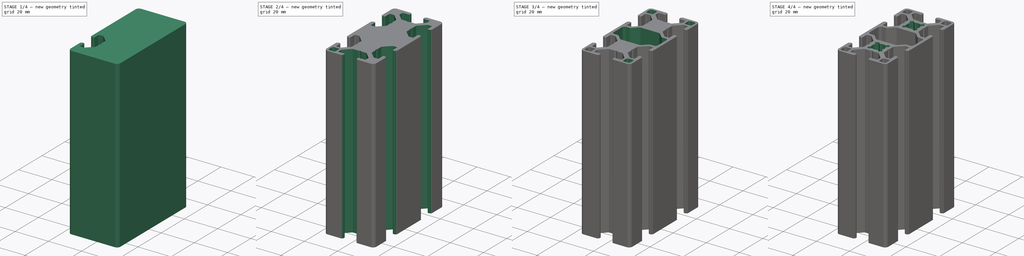
[diagram: build sequence overview — one tinted view per stage of 4, left to right]
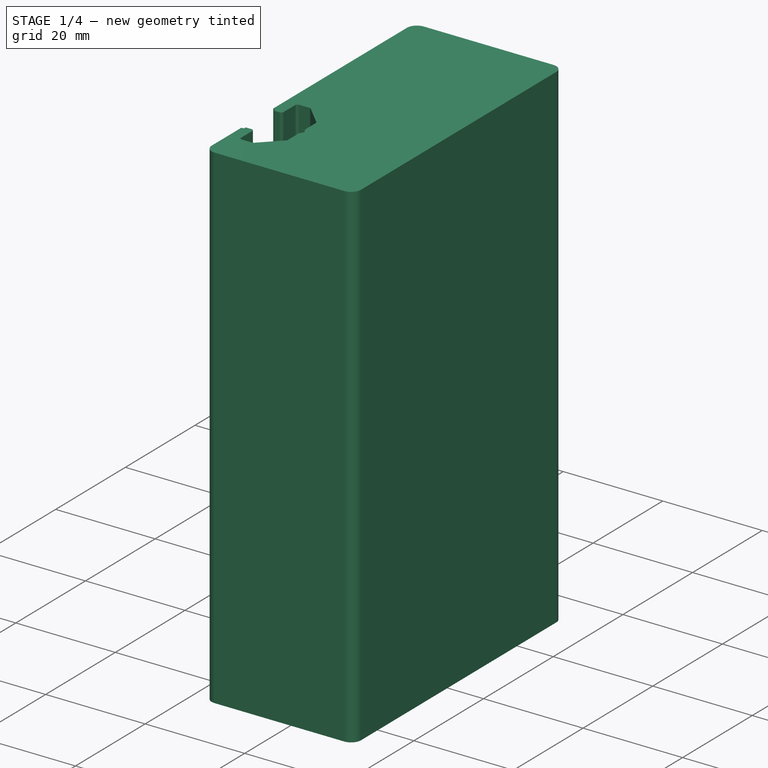
[diagram: stage 1 of 4 — iso view after this stage's code; geometry added in this stage tinted green]
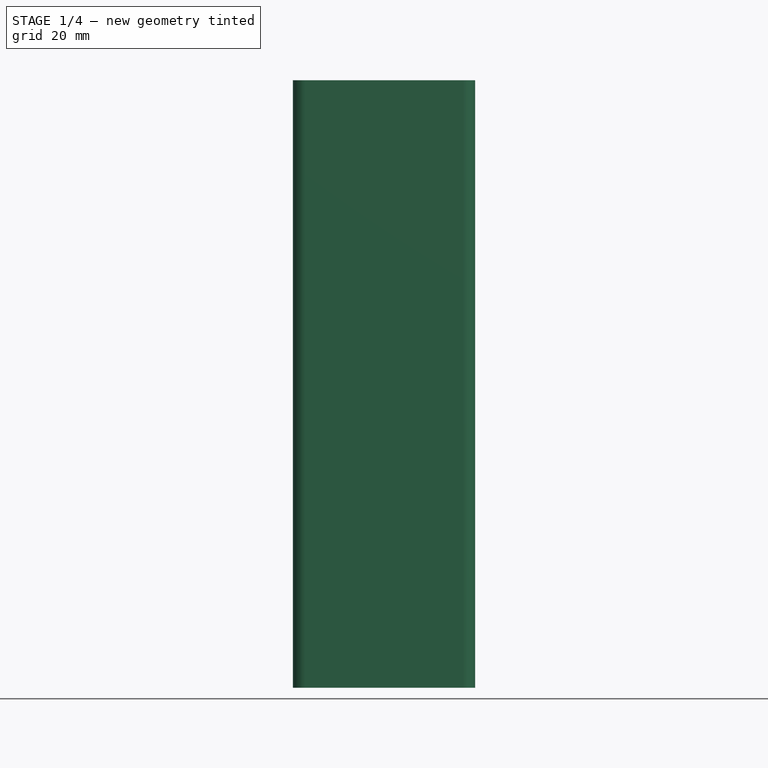
[diagram: stage 1 of 4 — front view after this stage's code; geometry added in this stage tinted green]
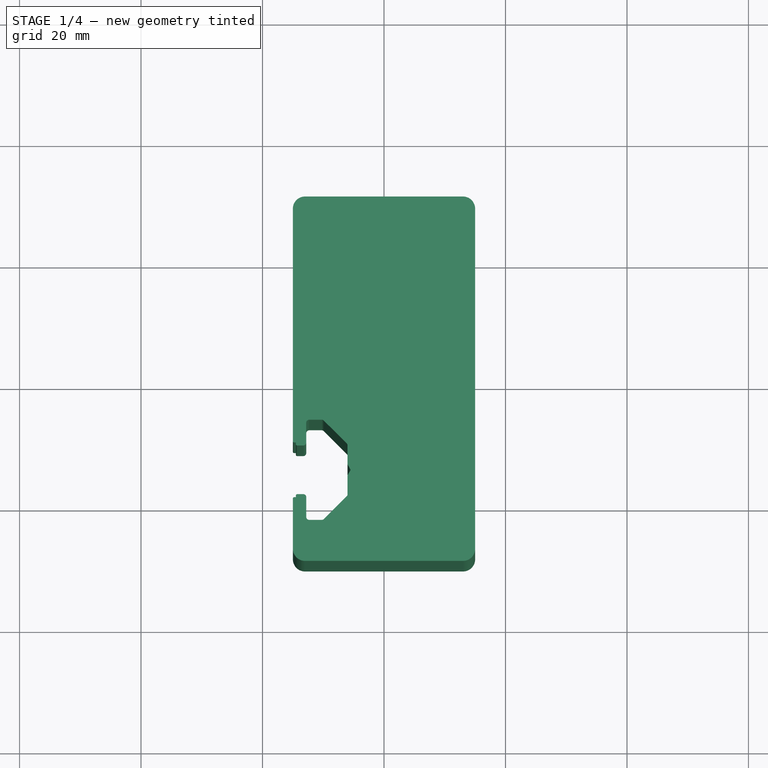
[diagram: stage 1 of 4 — top view after this stage's code; geometry added in this stage tinted green]
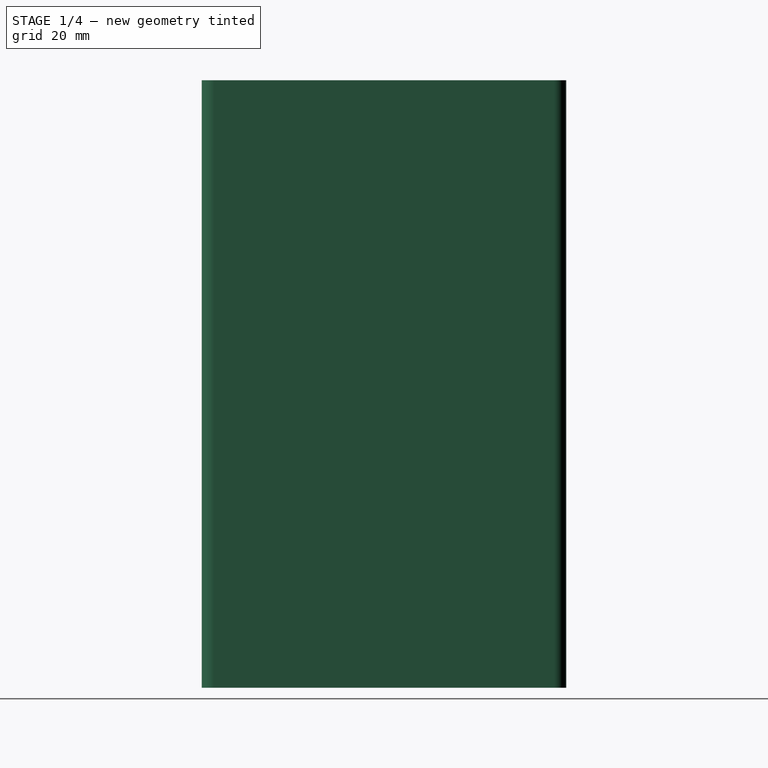
[diagram: stage 1 of 4 — right view after this stage's code; geometry added in this stage tinted green]
FCSTD DOCUMENT  (FreeCAD 0.18R16131 (Git))
Label: Profile-30x60-B-Type_Slot8
License: All rights reserved
LicenseURL: http://en.wikipedia.org/wiki/All_rights_reserved
objects: Sketcher::SketchObject×5, PartDesign::Pocket×4, PartDesign::Mirrored×4, PartDesign::PolarPattern×2, PartDesign::MultiTransform×2, PartDesign::Pad×1, PartDesign::Line×1, PartDesign::Body×1
note: 25 computed .brp shape members not serialized (recipe doc carries the construction recipe); baked Part::Feature solids carry a one-line shape summary decoded from their .brp

FEATURE [Sketcher::SketchObject] Sketch  label="Material_Sketch"
  MapMode = 5
  Support = -> [XY_Plane]
  expr: Constraints[15] = Constraints.Base_Width * 2
  sketch-geometry (8):
    g0: LineSegment StartX=-13 StartY=30 StartZ=0 EndX=13 EndY=30 EndZ=0
    g1: LineSegment StartX=15 StartY=28 StartZ=0 EndX=15 EndY=-28 EndZ=0
    g2: LineSegment StartX=13 StartY=-30 StartZ=0 EndX=-13 EndY=-30 EndZ=0
    g3: LineSegment StartX=-15 StartY=-28 StartZ=0 EndX=-15 EndY=28 EndZ=0
    g4: ArcOfCircle CenterX=-13 CenterY=28 CenterZ=0 NormalX=0 NormalY=0 NormalZ=1 AngleXU=0 Radius=2 StartAngle=1.5708 EndAngle=3.14159
    g5: ArcOfCircle CenterX=13 CenterY=28 CenterZ=0 NormalX=0 NormalY=0 NormalZ=1 AngleXU=0 Radius=2 StartAngle=-9e-16 EndAngle=1.5708
    g6: ArcOfCircle CenterX=-13 CenterY=-28 CenterZ=0 NormalX=0 NormalY=0 NormalZ=1 AngleXU=0 Radius=2 StartAngle=3.14159 EndAngle=4.71239
    g7: ArcOfCircle CenterX=13 CenterY=-28 CenterZ=0 NormalX=0 NormalY=0 NormalZ=1 AngleXU=0 Radius=2 StartAngle=4.71239 EndAngle=6.28319
  constraints (18):
    c: Horizontal(g0)
    c: Vertical(g1)
    c: Vertical(g3)
    c: Tangent(g3,g4) = 1.5708
    c: Tangent(g0,g4) = 1.5708
    c: Tangent(g0,g5) = 1.5708
    c: Tangent(g1,g5) = 1.5708
    c: Radius(g5) = 2
    c: Equal(g5,g4)
    c: Tangent(g3,g6) = 1.5708
    c: Tangent(g2,g6) = 1.5708
    c: Tangent(g2,g7) = 1.5708
    c: Tangent(g1,g7) = 1.5708
    c: Equal(g4,g6)
    c: DistanceX(g3,g1) = 30  'Base_Width'
    c: DistanceY(g2,g0) = 60
    c: Symmetric(g3,g1,g-2)
    c: Symmetric(g2,g0,g-1)
FEATURE [PartDesign::Pad] Pad  label="Solid_Material"
  Length = 100
  Length2 = 100
  Profile = -> Sketch
  Type = 0
FEATURE [Sketcher::SketchObject] Sketch001
  MapMode = 5
  Support = -> [XY_Plane]
  expr: Constraints[6] = Sketch.Constraints.Base_Width / 2
  expr: Constraints[3] = Sketch.Constraints.Base_Width
  sketch-geometry (34):
    g0: LineSegment [constr] StartX=-15 StartY=0 StartZ=0 EndX=-15 EndY=-30 EndZ=0
    g1: LineSegment [constr] StartX=-15 StartY=-15 StartZ=0 EndX=15 EndY=-15 EndZ=0
    g2: LineSegment StartX=-14.5 StartY=-10.5 StartZ=0 EndX=-14.5 EndY=-10.8 EndZ=0
    g3: LineSegment StartX=-14.3 StartY=-11 StartZ=0 EndX=-13.3 EndY=-11 EndZ=0
    g4: LineSegment StartX=-12.8 StartY=-10.5 StartZ=0 EndX=-12.8 EndY=-7.25 EndZ=0
    g5: LineSegment StartX=-12.3 StartY=-6.75 StartZ=0 EndX=-10.26 EndY=-6.75 EndZ=0
    g6: LineSegment StartX=-9.90668 StartY=-6.89621 StartZ=0 EndX=-6.14668 EndY=-10.6512 EndZ=0
    g7: LineSegment StartX=-6 StartY=-11.005 StartZ=0 EndX=-6 EndY=-14.045 EndZ=0
    g8: LineSegment StartX=-5.97414 StartY=-14.1434 StartZ=0 EndX=-5.54586 EndY=-14.9016 EndZ=0
    g9: LineSegment StartX=-5.54586 StartY=-15.0984 StartZ=0 EndX=-5.97414 EndY=-15.8566 EndZ=0
    g10: LineSegment StartX=-6 StartY=-15.955 StartZ=0 EndX=-6 EndY=-18.995 EndZ=0
    g11: LineSegment StartX=-6.14668 StartY=-19.3488 StartZ=0 EndX=-9.90668 EndY=-23.1038 EndZ=0
    g12: LineSegment StartX=-10.26 StartY=-23.25 StartZ=0 EndX=-12.3 EndY=-23.25 EndZ=0
    g13: LineSegment StartX=-12.8 StartY=-22.75 StartZ=0 EndX=-12.8 EndY=-19.5 EndZ=0
    g14: LineSegment StartX=-13.3 StartY=-19 StartZ=0 EndX=-14.3 EndY=-19 EndZ=0
    g15: LineSegment StartX=-14.5 StartY=-19.2 StartZ=0 EndX=-14.5 EndY=-19.5 EndZ=0
    g16: ArcOfCircle CenterX=-14.3 CenterY=-10.8 CenterZ=0 NormalX=0 NormalY=0 NormalZ=1 AngleXU=0 Radius=0.2 StartAngle=3.14159 EndAngle=4.71239
    g17: ArcOfCircle CenterX=-13.3 CenterY=-10.5 CenterZ=0 NormalX=0 NormalY=0 NormalZ=1 AngleXU=0 Radius=0.5 StartAngle=4.71239 EndAngle=6.28319
    g18: ArcOfCircle CenterX=-12.3 CenterY=-7.25 CenterZ=0 NormalX=0 NormalY=0 NormalZ=1 AngleXU=0 Radius=0.5 StartAngle=1.5708 EndAngle=3.14159
    g19: ArcOfCircle CenterX=-10.26 CenterY=-7.25 CenterZ=0 NormalX=0 NormalY=0 NormalZ=1 AngleXU=0 Radius=0.5 StartAngle=0.786063 EndAngle=1.5708
    g20: ArcOfCircle CenterX=-6.5 CenterY=-11.005 CenterZ=0 NormalX=0 NormalY=0 NormalZ=1 AngleXU=0 Radius=0.5 StartAngle=1e-16 EndAngle=0.786063
    g21: ArcOfCircle CenterX=-5.8 CenterY=-14.045 CenterZ=0 NormalX=0 NormalY=0 NormalZ=1 AngleXU=0 Radius=0.2 StartAngle=3.14159 EndAngle=3.65573
    g22: ArcOfCircle CenterX=-5.72 CenterY=-15 CenterZ=0 NormalX=0 NormalY=0 NormalZ=1 AngleXU=0 Radius=0.2 StartAngle=5.76904 EndAngle=6.79733
    g23: ArcOfCircle CenterX=-5.8 CenterY=-15.955 CenterZ=0 NormalX=0 NormalY=0 NormalZ=1 AngleXU=0 Radius=0.2 StartAngle=2.62745 EndAngle=3.14159
    g24: ArcOfCircle CenterX=-6.5 CenterY=-18.995 CenterZ=0 NormalX=0 NormalY=0 NormalZ=1 AngleXU=0 Radius=0.5 StartAngle=5.49712 EndAngle=6.28319
    g25: ArcOfCircle CenterX=-10.26 CenterY=-22.75 CenterZ=0 NormalX=0 NormalY=0 NormalZ=1 AngleXU=0 Radius=0.5 StartAngle=4.71239 EndAngle=5.49712
    g26: ArcOfCircle CenterX=-12.3 CenterY=-22.75 CenterZ=0 NormalX=0 NormalY=0 NormalZ=1 AngleXU=0 Radius=0.5 StartAngle=3.14159 EndAngle=4.71239
    g27: ArcOfCircle CenterX=-13.3 CenterY=-19.5 CenterZ=0 NormalX=0 NormalY=0 NormalZ=1 AngleXU=0 Radius=0.5 StartAngle=-1.8e-15 EndAngle=1.5708
    g28: ArcOfCircle CenterX=-14.3 CenterY=-19.2 CenterZ=0 NormalX=0 NormalY=0 NormalZ=1 AngleXU=0 Radius=0.2 StartAngle=1.5708 EndAngle=3.14159
    g29: LineSegment StartX=-14.5 StartY=-10.5 StartZ=0 EndX=-14.8 EndY=-10.5 EndZ=0
    g30: ArcOfCircle CenterX=-14.8 CenterY=-10.3 CenterZ=0 NormalX=0 NormalY=0 NormalZ=1 AngleXU=0 Radius=0.2 StartAngle=3.14157 EndAngle=4.71239
    g31: LineSegment StartX=-14.5 StartY=-19.5 StartZ=0 EndX=-14.8 EndY=-19.5 EndZ=0
    g32: ArcOfCircle CenterX=-14.8 CenterY=-19.7 CenterZ=0 NormalX=0 NormalY=0 NormalZ=1 AngleXU=0 Radius=0.200005 StartAngle=1.5708 EndAngle=3.14159
    g33: LineSegment StartX=-15 StartY=-10.3 StartZ=0 EndX=-15 EndY=-19.7 EndZ=0
  constraints (82):
    c: Vertical(g0)
    c: Horizontal(g1)
    c: Equal(g0,g1)
    c: DistanceY(g0,g0) = 30
    c: Symmetric(g0,g0,g1)
    c: PointOnObject(g0,g-1)
    c: DistanceX(g0,g-1) = 15
    c: Vertical(g2)
    c: Vertical(g4)
    c: Horizontal(g5)
    c: Vertical(g7)
    c: Vertical(g10)
    c: Vertical(g13)
    c: Horizontal(g14)
    c: Vertical(g15)
    c: Horizontal(g3)
    c: Horizontal(g12)
    c: Symmetric(g2,g15,g1)
    c: Tangent(g2,g16) = -1.5708
    c: Tangent(g3,g16) = -1.5708
    c: Tangent(g3,g17) = -1.5708
    c: Tangent(g4,g17) = -1.5708
    c: Tangent(g4,g18) = 1.5708
    c: Tangent(g5,g18) = 1.5708
    c: Tangent(g5,g19) = 1.5708
    c: Tangent(g6,g19) = 1.5708
    c: Tangent(g6,g20) = 1.5708
    c: Tangent(g7,g20) = 1.5708
    c: Tangent(g7,g21) = -1.5708
    c: Tangent(g8,g21) = -1.5708
    c: Tangent(g8,g22) = 1.5708
    c: Tangent(g9,g22) = 1.5708
    c: Tangent(g10,g23) = -1.5708
    c: Tangent(g9,g23) = -1.5708
    c: Tangent(g10,g24) = 1.5708
    c: Tangent(g11,g24) = 1.5708
    c: Tangent(g11,g25) = 1.5708
    c: Tangent(g12,g25) = 1.5708
    c: Tangent(g12,g26) = 1.5708
    c: Tangent(g13,g26) = 1.5708
    c: Tangent(g14,g27) = -1.5708
    c: Tangent(g13,g27) = -1.5708
    c: Tangent(g15,g28) = -1.5708
    c: Tangent(g14,g28) = -1.5708
    c: Equal(g16,g28)
    c: Equal(g17,g27)
    c: Equal(g20,g24)
    c: Radius(g17) = 0.5
    c: Radius(g16) = 0.2
    c: Radius(g18) = 0.5
    c: Radius(g19) = 0.5
    c: Radius(g20) = 0.5
    c: Radius(g21) = 0.2
    c: Radius(g22) = 0.2
    c: PointOnObject(g22,g1)
    c: Coincident(g2,g29)
    c: Tangent(g29,g30) = 1.5708
    c: Coincident(g15,g31)
    c: Horizontal(g31)
    c: Tangent(g31,g32) = -1.5708
    c: Symmetric(g32,g30,g1)
    c: Coincident(g33,g30)
    c: Coincident(g33,g32)
    c: Horizontal(g29)
    c: Radius(g30) = 0.2
    c: Symmetric(g18,g26,g1)
    c: Symmetric(g20,g24,g1)
    c: Symmetric(g21,g23,g1)
    c: Tangent(g30,g0)
    c: Symmetric(g17,g27,g1)
    c: DistanceY(g15,g2) = 9
    c: DistanceY(g14,g3) = 8
    c: DistanceY(g12,g5) = 16.5
    c: DistanceY(g24,g20) = 7.99
    c: DistanceX(g32,g24) = 8.5
    c: DistanceX(g32,g25) = 4.74
    c: DistanceX(g32,g22) = 9.28
    c: Symmetric(g19,g25,g1)
    c: Tangent(g32,g0) = -1.5708
    c: DistanceX(g32,g15) = 0.5
    c: DistanceY(g23,g21) = 1.91
    c: DistanceX(g32,g13) = 2.2
FEATURE [PartDesign::Pocket] Pocket  label="Slot"
  BaseFeature = -> Pad
  Length = 5
  Length2 = 100
  Profile = -> Sketch001
  Reversed = true
  Type = 1
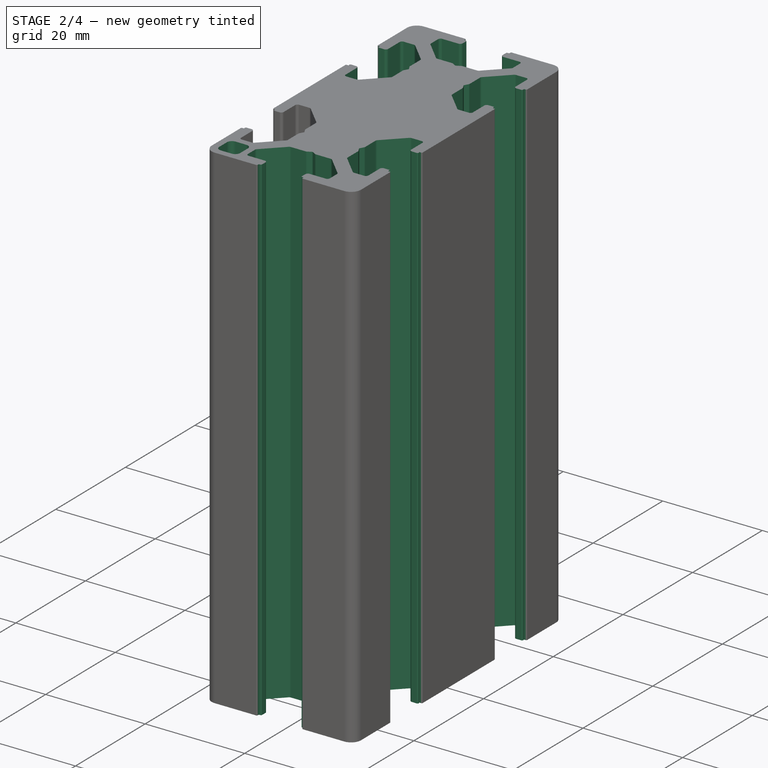
[diagram: stage 2 of 4 — iso view after this stage's code; geometry added in this stage tinted green]
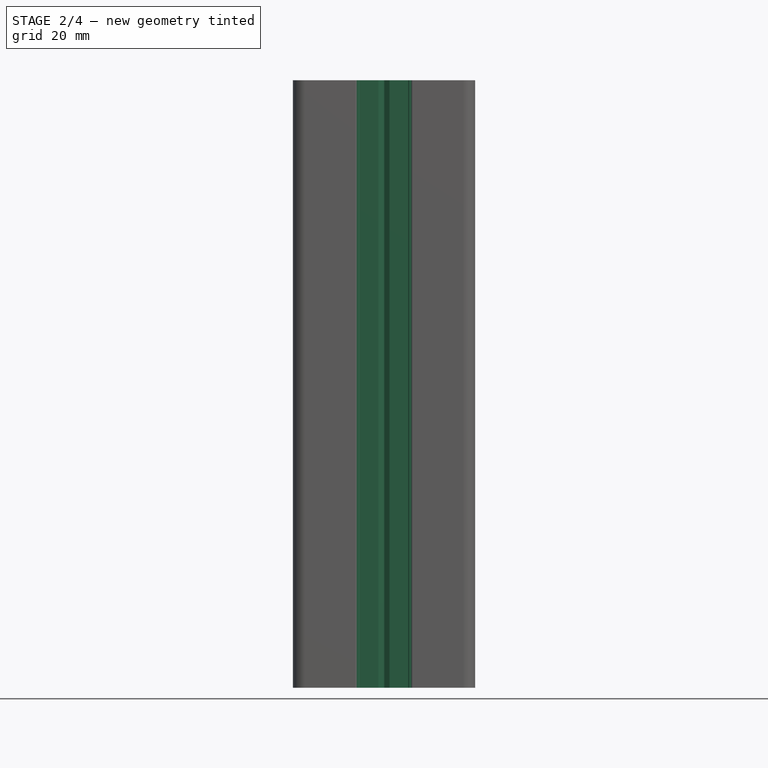
[diagram: stage 2 of 4 — front view after this stage's code; geometry added in this stage tinted green]
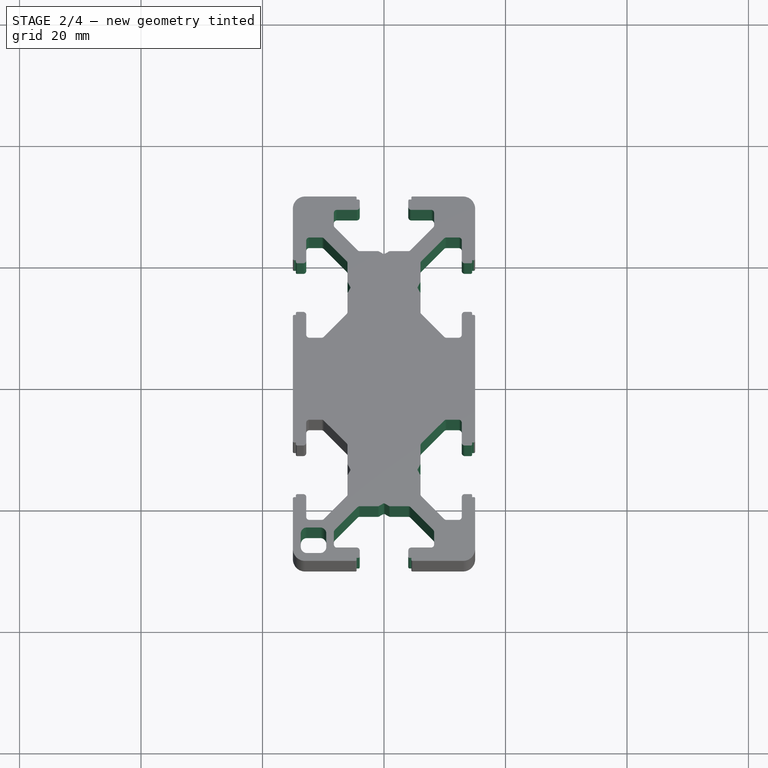
[diagram: stage 2 of 4 — top view after this stage's code; geometry added in this stage tinted green]
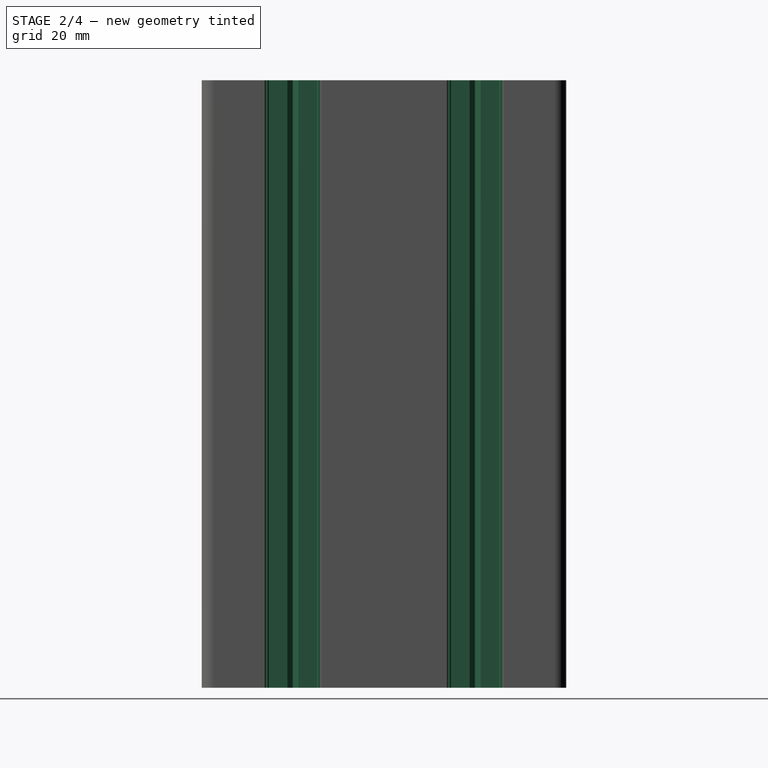
[diagram: stage 2 of 4 — right view after this stage's code; geometry added in this stage tinted green]
FEATURE [PartDesign::Line] DatumLine
  AttacherType = Attacher::AttachEngineLine
  AttachmentOffset = pos=(0,-15,0) rot=(0,0,1;0rad)
  MapMode = 29
  Placement = pos=(0,-15,5e-15) rot=(0,0,1;0rad)
  Support = -> [Z_Axis]
  expr: AttachmentOffset.Base.y = -Sketch.Constraints.Base_Width / 2
FEATURE [PartDesign::PolarPattern] PolarPattern
  Angle = 180
  Axis = -> DatumLine
  Occurrences = 3
FEATURE [PartDesign::Mirrored] Mirrored
  MirrorPlane = -> XZ_Plane
FEATURE [PartDesign::MultiTransform] MultiTransform
  BaseFeature = -> Pocket
  Originals = -> [Pocket]
  Transformations = -> [PolarPattern,Mirrored]
FEATURE [Sketcher::SketchObject] Sketch002
  MapMode = 5
  Support = -> [XY_Plane]
  expr: Constraints[19] = Sketch.Constraints.Base_Width / 2 + 10.5mm
  sketch-geometry (8):
    g0: LineSegment StartX=-12.7 StartY=-24.5 StartZ=0 EndX=-10.5 EndY=-24.5 EndZ=0
    g1: LineSegment StartX=-9.5 StartY=-25.5 StartZ=0 EndX=-9.5 EndY=-27.7 EndZ=0
    g2: LineSegment StartX=-10.5 StartY=-28.7 StartZ=0 EndX=-12.7 EndY=-28.7 EndZ=0
    g3: LineSegment StartX=-13.7 StartY=-27.7 StartZ=0 EndX=-13.7 EndY=-25.5 EndZ=0
    g4: ArcOfCircle CenterX=-12.7 CenterY=-25.5 CenterZ=0 NormalX=0 NormalY=0 NormalZ=1 AngleXU=0 Radius=1 StartAngle=1.5708 EndAngle=3.14159
    g5: ArcOfCircle CenterX=-10.5 CenterY=-27.7 CenterZ=0 NormalX=0 NormalY=0 NormalZ=1 AngleXU=0 Radius=1 StartAngle=4.71239 EndAngle=6.28319
    g6: ArcOfCircle CenterX=-12.7 CenterY=-27.7 CenterZ=0 NormalX=0 NormalY=0 NormalZ=1 AngleXU=0 Radius=1 StartAngle=3.14159 EndAngle=4.71239
    g7: ArcOfCircle CenterX=-10.5 CenterY=-25.5 CenterZ=0 NormalX=0 NormalY=0 NormalZ=1 AngleXU=0 Radius=1 StartAngle=1.59e-13 EndAngle=1.5708
  constraints (20):
    c: Horizontal(g0)
    c: Horizontal(g2)
    c: Vertical(g1)
    c: Vertical(g3)
    c: Tangent(g3,g4) = 1.5708
    c: Tangent(g0,g4) = 1.5708
    c: Tangent(g1,g5) = 1.5708
    c: Tangent(g2,g5) = 1.5708
    c: Tangent(g3,g6) = 1.5708
    c: Tangent(g2,g6) = 1.5708
    c: Tangent(g0,g7) = 1.5708
    c: Tangent(g1,g7) = 1.5708
    c: Radius(g4) = 1
    c: Equal(g4,g7)
    c: Equal(g7,g5)
    c: Equal(g5,g6)
    c: DistanceY(g6,g4) = 2.2
    c: DistanceX(g6,g5) = 2.2
    c: DistanceX(g7,g-1) = 10.5
    c: DistanceY(g7,g-1) = 25.5
FEATURE [PartDesign::Pocket] Pocket001
  BaseFeature = -> MultiTransform
  Length = 5
  Length2 = 100
  Profile = -> Sketch002
  Reversed = true
  Type = 1
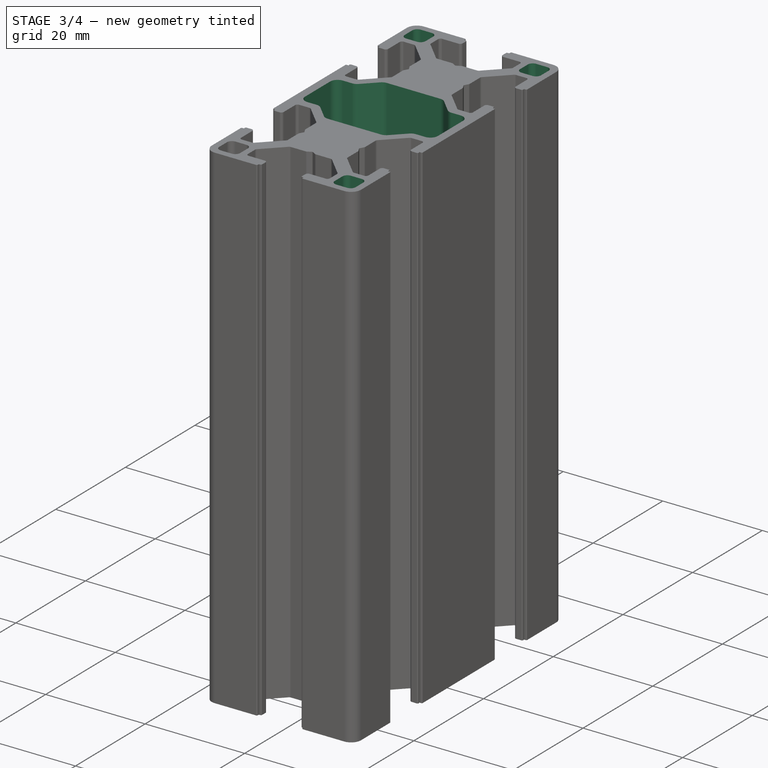
[diagram: stage 3 of 4 — iso view after this stage's code; geometry added in this stage tinted green]
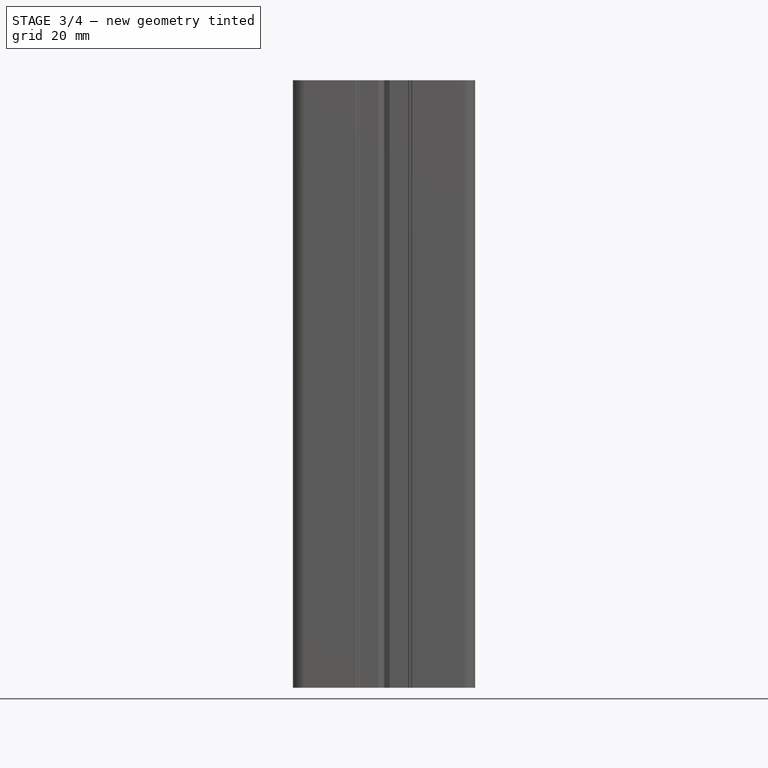
[diagram: stage 3 of 4 — front view after this stage's code; geometry added in this stage tinted green]
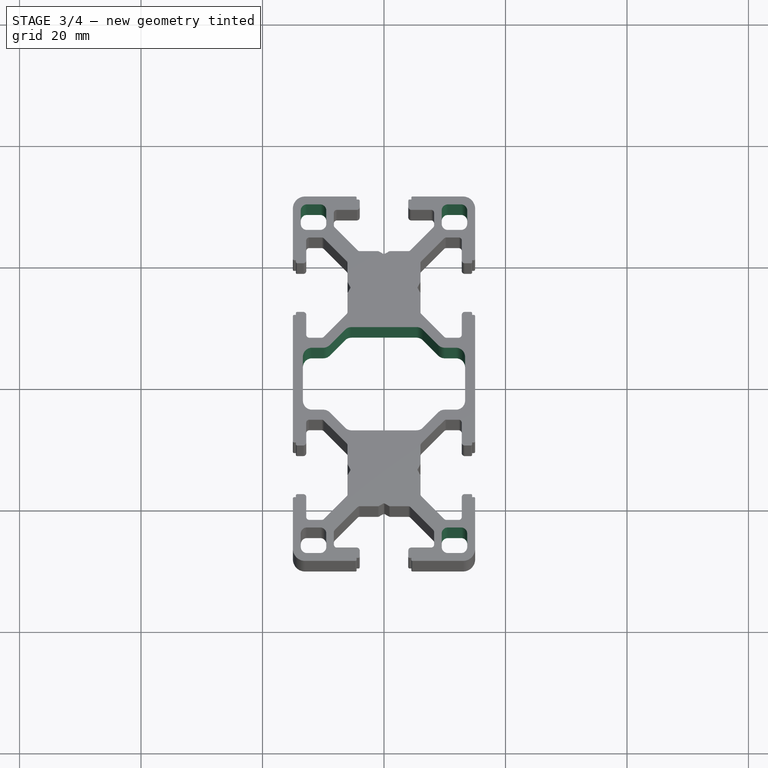
[diagram: stage 3 of 4 — top view after this stage's code; geometry added in this stage tinted green]
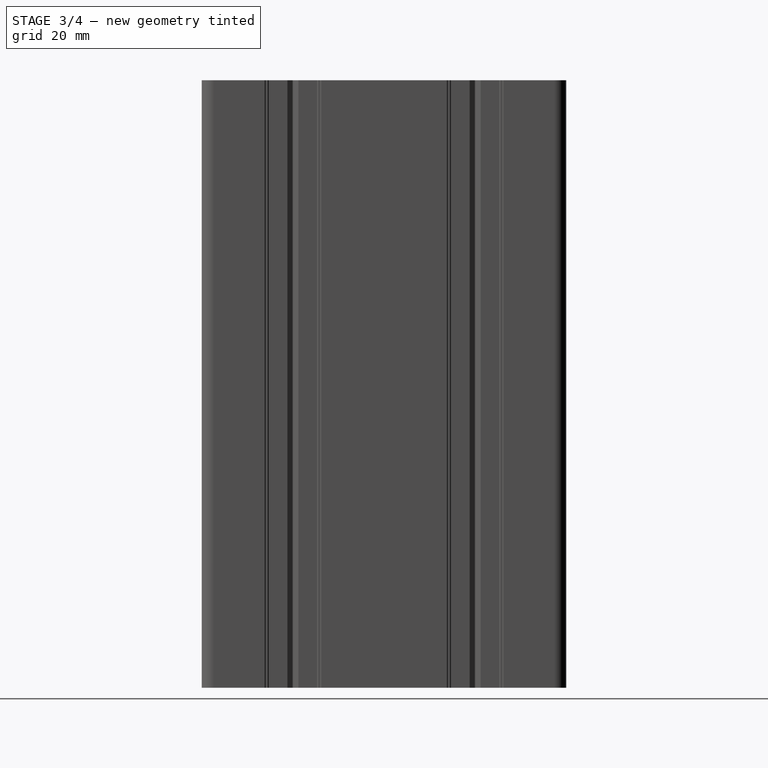
[diagram: stage 3 of 4 — right view after this stage's code; geometry added in this stage tinted green]
FEATURE [PartDesign::PolarPattern] PolarPattern001
  Angle = 90
  Axis = -> DatumLine
  Occurrences = 2
FEATURE [PartDesign::Mirrored] Mirrored001
  MirrorPlane = -> XZ_Plane
FEATURE [PartDesign::MultiTransform] MultiTransform001
  BaseFeature = -> Pocket001
  Originals = -> [Pocket001]
  Transformations = -> [PolarPattern001,Mirrored001]
FEATURE [Sketcher::SketchObject] Sketch003
  MapMode = 5
  Support = -> [XY_Plane]
  sketch-geometry (14):
    g0: LineSegment StartX=-13.35 StartY=0 StartZ=0 EndX=-13.35 EndY=-3.6 EndZ=0
    g1: LineSegment StartX=-11.85 StartY=-5.1 StartZ=0 EndX=-9.99 EndY=-5.1 EndZ=0
    g2: LineSegment StartX=-8.92878 StartY=-5.5399 StartZ=0 EndX=-6.41122 EndY=-8.0601 EndZ=0
    g3: LineSegment StartX=-5.35 StartY=-8.5 StartZ=0 EndX=5.35 EndY=-8.5 EndZ=0
    g4: LineSegment StartX=6.41122 StartY=-8.0601 StartZ=0 EndX=8.92878 EndY=-5.5399 EndZ=0
    g5: LineSegment StartX=9.99 StartY=-5.1 StartZ=0 EndX=11.85 EndY=-5.1 EndZ=0
    g6: LineSegment StartX=13.35 StartY=-3.6 StartZ=0 EndX=13.35 EndY=0 EndZ=0
    g7: LineSegment StartX=13.35 StartY=0 StartZ=0 EndX=-13.35 EndY=0 EndZ=0
    g8: ArcOfCircle CenterX=-11.85 CenterY=-3.6 CenterZ=0 NormalX=0 NormalY=0 NormalZ=1 AngleXU=0 Radius=1.5 StartAngle=3.14159 EndAngle=4.71239
    g9: ArcOfCircle CenterX=-9.99 CenterY=-6.6 CenterZ=0 NormalX=0 NormalY=0 NormalZ=1 AngleXU=0 Radius=1.5 StartAngle=0.784874 EndAngle=1.5708
    g10: ArcOfCircle CenterX=-5.35 CenterY=-7 CenterZ=0 NormalX=0 NormalY=0 NormalZ=1 AngleXU=0 Radius=1.5 StartAngle=3.92647 EndAngle=4.71239
    g11: ArcOfCircle CenterX=5.35 CenterY=-7 CenterZ=0 NormalX=0 NormalY=0 NormalZ=1 AngleXU=0 Radius=1.5 StartAngle=4.71239 EndAngle=5.49831
    g12: ArcOfCircle CenterX=9.99 CenterY=-6.6 CenterZ=0 NormalX=0 NormalY=0 NormalZ=1 AngleXU=0 Radius=1.5 StartAngle=1.5708 EndAngle=2.35672
    g13: ArcOfCircle CenterX=11.85 CenterY=-3.6 CenterZ=0 NormalX=0 NormalY=0 NormalZ=1 AngleXU=0 Radius=1.5 StartAngle=4.71239 EndAngle=6.28319
  constraints (33):
    c: PointOnObject(g0,g-1)
    c: Vertical(g0)
    c: Horizontal(g1)
    c: Horizontal(g3)
    c: Horizontal(g5)
    c: Vertical(g6)
    c: Coincident(g6,g7)
    c: Coincident(g7,g0)
    c: Symmetric(g0,g6,g-2)
    c: Tangent(g0,g8) = -1.5708
    c: Tangent(g1,g8) = -1.5708
    c: Tangent(g1,g9) = 1.5708
    c: Tangent(g2,g9) = 1.5708
    c: Tangent(g2,g10) = -1.5708
    c: Tangent(g3,g10) = -1.5708
    c: Tangent(g3,g11) = -1.5708
    c: Tangent(g4,g11) = -1.5708
    c: Tangent(g4,g12) = 1.5708
    c: Tangent(g5,g12) = 1.5708
    c: Tangent(g6,g13) = -1.5708
    c: Tangent(g5,g13) = -1.5708
    c: Radius(g8) = 1.5
    c: Equal(g8,g9)
    c: Equal(g9,g10)
    c: Equal(g11,g12)
    c: Equal(g12,g13)
    c: Symmetric(g10,g11,g-2)
    c: Symmetric(g12,g9,g-2)
    c: DistanceY(g8,g0) = 3.6
    c: DistanceX(g10,g11) = 10.7
    c: DistanceX(g8,g13) = 23.7
    c: DistanceX(g9,g12) = 19.98
    c: DistanceY(g10,g9) = 0.4
FEATURE [PartDesign::Pocket] Pocket002
  BaseFeature = -> MultiTransform001
  Length = 5
  Length2 = 100
  Profile = -> Sketch003
  Reversed = true
  Type = 1
FEATURE [PartDesign::Mirrored] Mirrored002
  BaseFeature = -> Pocket002
  MirrorPlane = -> XZ_Plane
  Originals = -> [Pocket002]
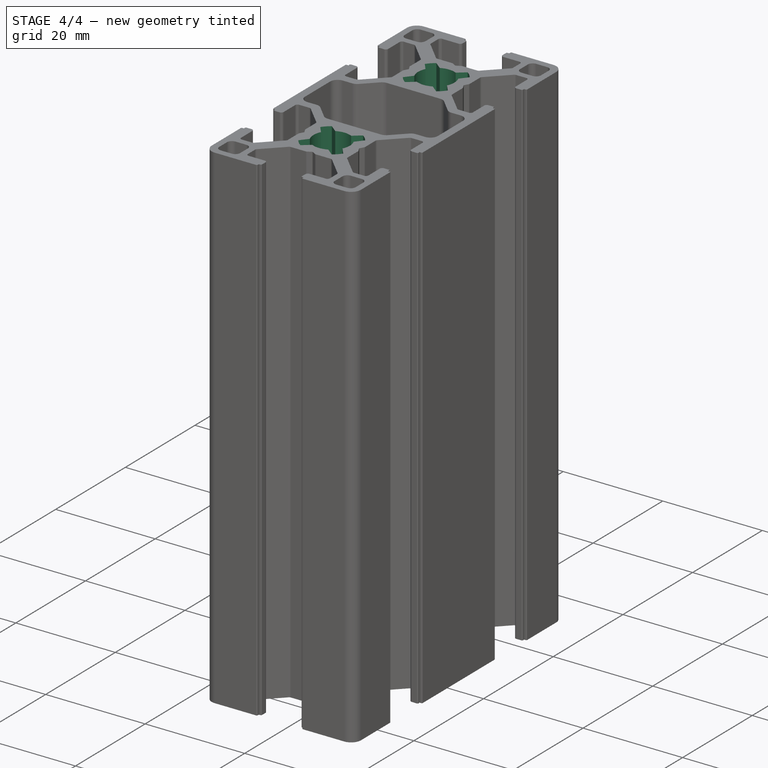
[diagram: stage 4 of 4 — iso view after this stage's code; geometry added in this stage tinted green]
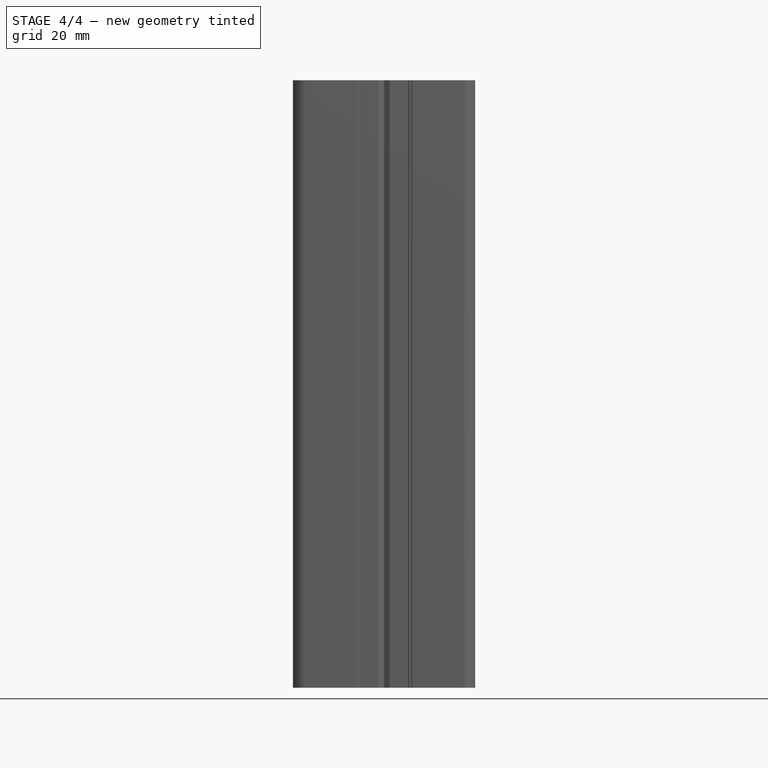
[diagram: stage 4 of 4 — front view after this stage's code; geometry added in this stage tinted green]
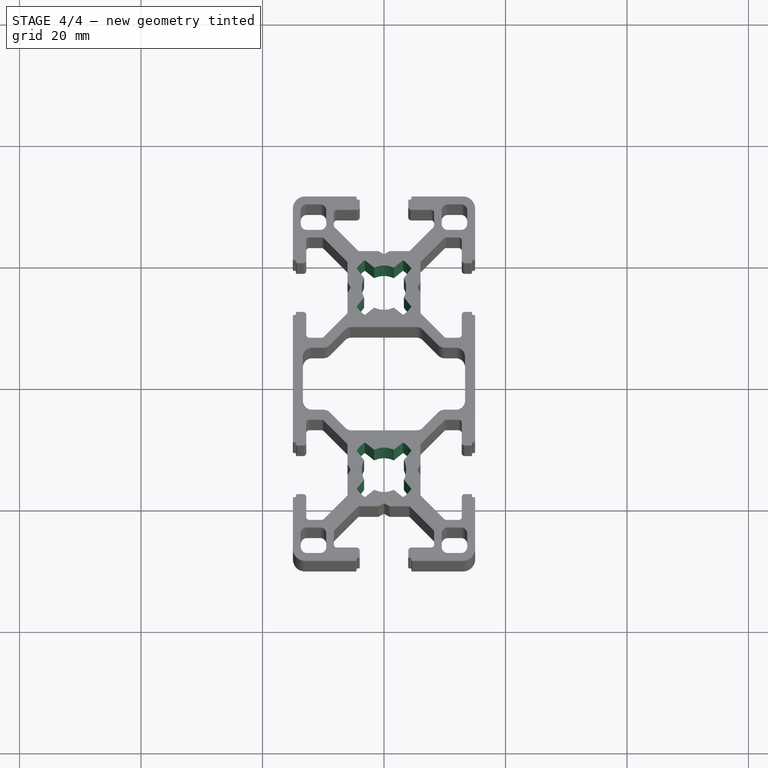
[diagram: stage 4 of 4 — top view after this stage's code; geometry added in this stage tinted green]
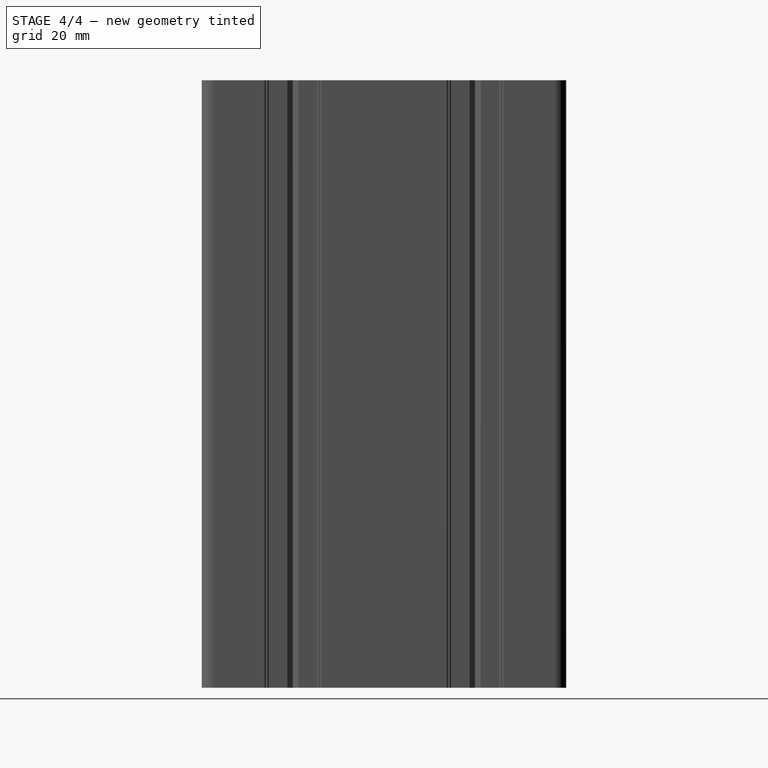
[diagram: stage 4 of 4 — right view after this stage's code; geometry added in this stage tinted green]
FEATURE [Sketcher::SketchObject] Sketch004
  MapMode = 5
  Support = -> [XY_Plane]
  expr: Constraints[48] = Sketch.Constraints.Base_Width
  expr: Constraints[47] = Sketch.Constraints.Base_Width
  expr: Constraints[43] = Constraints.width
  expr: Constraints[36] = Constraints.angle
  expr: Constraints[39] = Constraints.width
  expr: Constraints[37] = Constraints.angle
  expr: Constraints[38] = Constraints.angle
  expr: Constraints[40] = Constraints.width
  sketch-geometry (18):
    g0: ArcOfCircle CenterX=2.5e-15 CenterY=-15 CenterZ=0 NormalX=0 NormalY=0 NormalZ=1 AngleXU=0 Radius=3.65 StartAngle=1.1175 EndAngle=2.0241
    g1: ArcOfCircle CenterX=2.5e-15 CenterY=-15 CenterZ=0 NormalX=0 NormalY=0 NormalZ=1 AngleXU=0 Radius=5.5 StartAngle=2.17927 EndAngle=2.53312
    g2: LineSegment StartX=-4.51287 StartY=-11.8561 StartZ=0 EndX=-3.28138 EndY=-13.4015 EndZ=0
    g3: LineSegment StartX=-3.14389 StartY=-10.4871 StartZ=0 EndX=-1.59846 EndY=-11.7186 EndZ=0
    g4: LineSegment [constr] StartX=-15 StartY=-30 StartZ=0 EndX=15 EndY=0 EndZ=0
    g5: LineSegment [constr] StartX=-15 StartY=0 StartZ=0 EndX=15 EndY=-30 EndZ=0
    g6: ArcOfCircle CenterX=2.5e-15 CenterY=-15 CenterZ=0 NormalX=0 NormalY=0 NormalZ=1 AngleXU=0 Radius=3.65 StartAngle=5.82989 EndAngle=6.73649
    g7: ArcOfCircle CenterX=2.5e-15 CenterY=-15 CenterZ=0 NormalX=0 NormalY=0 NormalZ=1 AngleXU=0 Radius=3.65 StartAngle=4.25909 EndAngle=5.16569
    g8: ArcOfCircle CenterX=2.5e-15 CenterY=-15 CenterZ=0 NormalX=0 NormalY=0 NormalZ=1 AngleXU=0 Radius=3.65 StartAngle=2.68829 EndAngle=3.59489
    g9: ArcOfCircle CenterX=2.5e-15 CenterY=-15 CenterZ=0 NormalX=0 NormalY=0 NormalZ=1 AngleXU=0 Radius=5.5 StartAngle=0.608474 EndAngle=0.962322
    g10: ArcOfCircle CenterX=2.5e-15 CenterY=-15 CenterZ=0 NormalX=0 NormalY=0 NormalZ=1 AngleXU=0 Radius=5.5 StartAngle=5.32086 EndAngle=5.67471
    g11: ArcOfCircle CenterX=2.5e-15 CenterY=-15 CenterZ=0 NormalX=0 NormalY=0 NormalZ=1 AngleXU=0 Radius=5.5 StartAngle=3.75007 EndAngle=4.10391
    g12: LineSegment StartX=-4.51287 StartY=-18.1439 StartZ=0 EndX=-3.28138 EndY=-16.5985 EndZ=0
    g13: LineSegment StartX=-3.14389 StartY=-19.5129 StartZ=0 EndX=-1.59846 EndY=-18.2814 EndZ=0
    g14: LineSegment StartX=1.59846 StartY=-18.2814 StartZ=0 EndX=3.14389 EndY=-19.5129 EndZ=0
    g15: LineSegment StartX=4.51287 StartY=-18.1439 StartZ=0 EndX=3.28138 EndY=-16.5985 EndZ=0
    g16: LineSegment StartX=3.28138 StartY=-13.4015 StartZ=0 EndX=4.51287 EndY=-11.8561 EndZ=0
    g17: LineSegment StartX=3.14389 StartY=-10.4871 StartZ=0 EndX=1.59846 EndY=-11.7186 EndZ=0
  constraints (54):
    c: Coincident(g1,g0)
    c: Coincident(g2,g1)
    c: Coincident(g3,g1)
    c: Coincident(g3,g0)
    c: Angle(g2,g3) = 0.225147  'angle'
    c: Horizontal(g4,g5)
    c: Radius(g0) = 3.65
    c: Radius(g1) = 5.5
    c: Symmetric(g1,g1,g5)
    c: Coincident(g6,g0)
    c: Coincident(g7,g0)
    c: Coincident(g8,g0)
    c: Coincident(g8,g2)
    c: Equal(g0,g6)
    c: Coincident(g9,g0)
    c: Coincident(g10,g0)
    c: Coincident(g11,g0)
    c: Coincident(g12,g11)
    c: Coincident(g12,g8)
    c: Coincident(g13,g11)
    c: Coincident(g13,g7)
    c: Coincident(g14,g7)
    c: Coincident(g14,g10)
    c: Coincident(g15,g10)
    c: Coincident(g15,g6)
    c: Coincident(g16,g6)
    c: Coincident(g16,g9)
    c: Coincident(g17,g9)
    c: Coincident(g17,g0)
    c: Equal(g1,g9)
    c: Equal(g9,g10)
    c: Equal(g10,g11)
    c: Symmetric(g9,g9,g4)
    c: Symmetric(g10,g10,g5)
    c: Symmetric(g11,g11,g4)
    c: Distance(g2,g0) = 2.38  'width'
    c: Angle(g17,g16) = 0.225147
    c: Angle(g15,g14) = 0.225147
    c: Angle(g13,g12) = 0.225147
    c: Distance(g0,g6) = 2.38
    c: Distance(g7,g6) = 2.38
    c: Symmetric(g8,g7,g4)
    c: Symmetric(g7,g6,g5)
    c: Distance(g7,g8) = 2.38
    c: Symmetric(g2,g0,g5)
    c: Symmetric(g0,g6,g4)
    c: Equal(g5,g4)
    c: DistanceX(g5,g4) = 30
    c: DistanceY(g5,g4) = 30
    c: Vertical(g5,g4)
    c: Equal(g3,g2)
    c: Equal(g4,g5)
    c: Symmetric(g5,g4,g-2)
    c: PointOnObject(g5,g-1)
FEATURE [PartDesign::Pocket] Pocket003
  BaseFeature = -> Mirrored002
  Length = 5
  Length2 = 100
  Profile = -> Sketch004
  Reversed = true
  Type = 1
FEATURE [PartDesign::Mirrored] Mirrored003
  BaseFeature = -> Pocket003
  MirrorPlane = -> XZ_Plane
  Originals = -> [Pocket003]
FEATURE [PartDesign::Body] Body
  Group = -> [Sketch,Pad,Sketch001,Pocket,DatumLine,MultiTransform,PolarPattern,Mirrored,Sketch002,Pocket001,MultiTransform001,PolarPattern001,Mirrored001,Sketch003,Pocket002,Mirrored002,Sketch004,Pocket003,Mirrored003]
  Origin = -> Origin
  Tip = -> Mirrored003
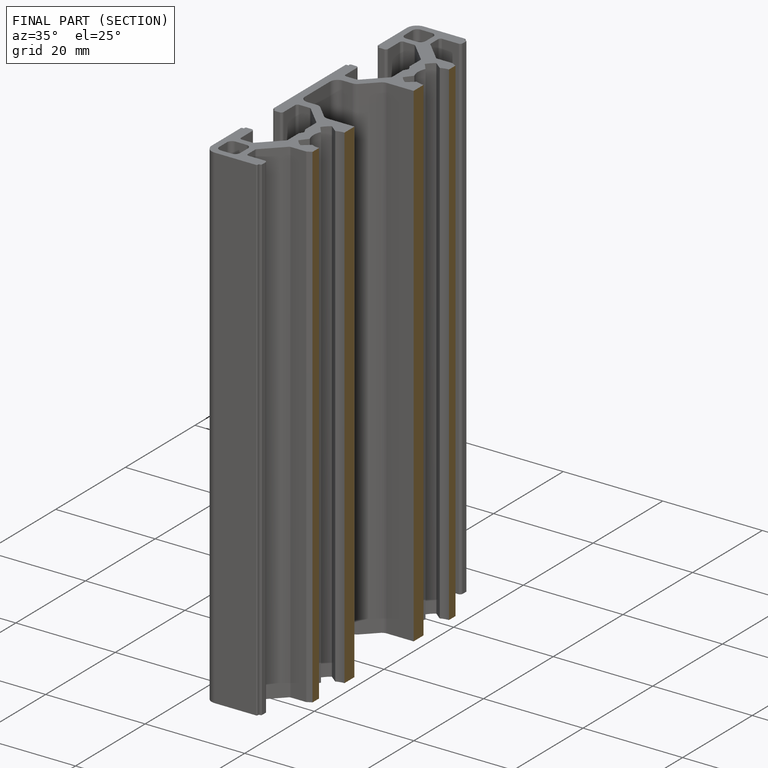
[diagram: finished part — half-section view (interior)]
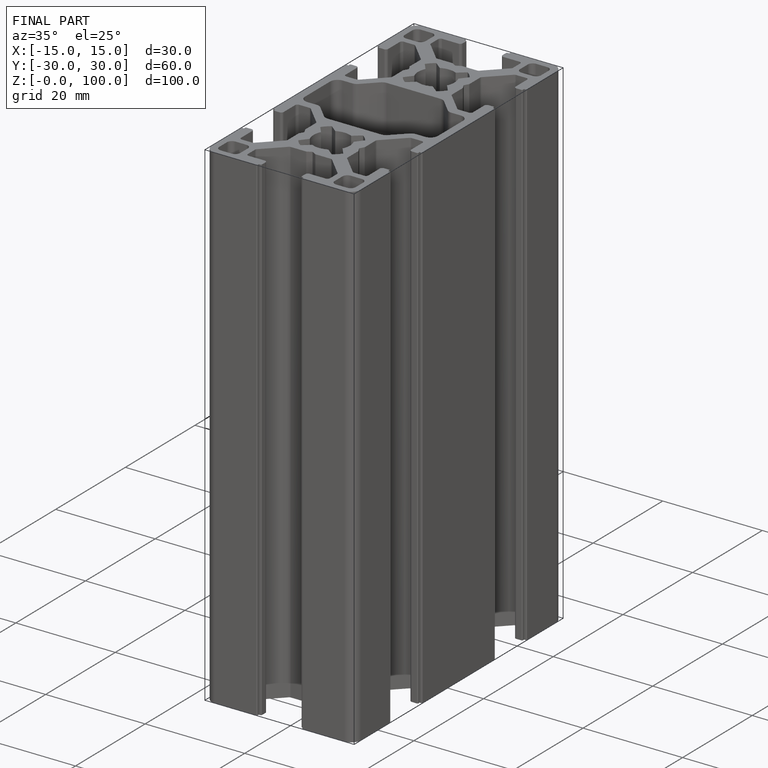
[diagram: finished part — iso view with bounding-box wireframe]
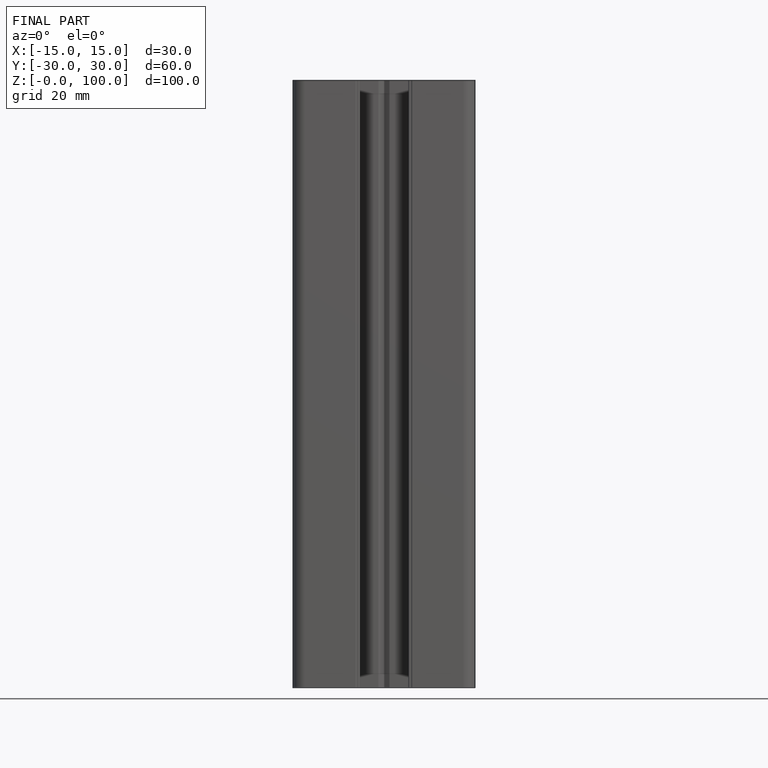
[diagram: finished part — front view with bounding-box wireframe]
